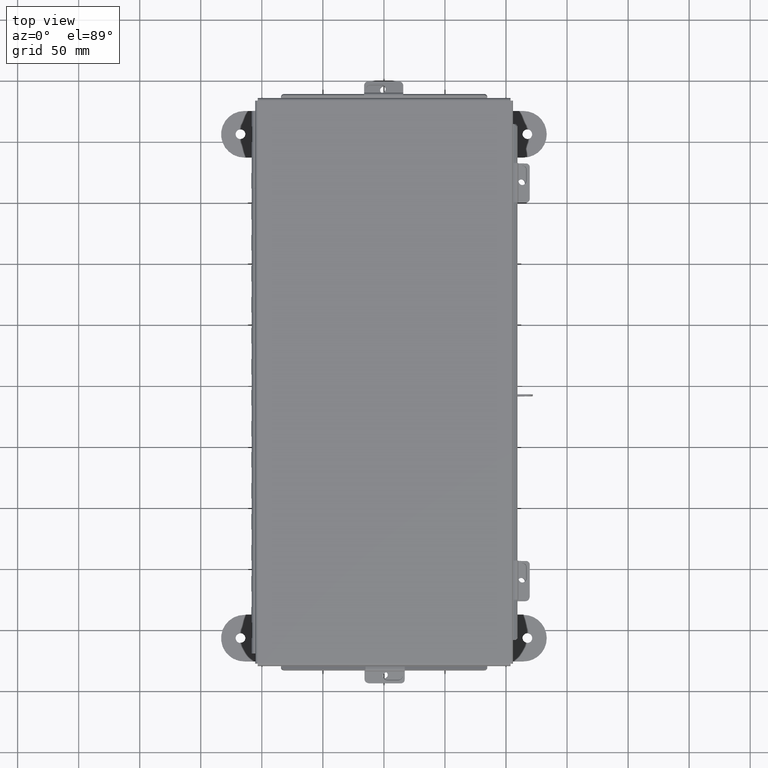
[diagram: clean part render]
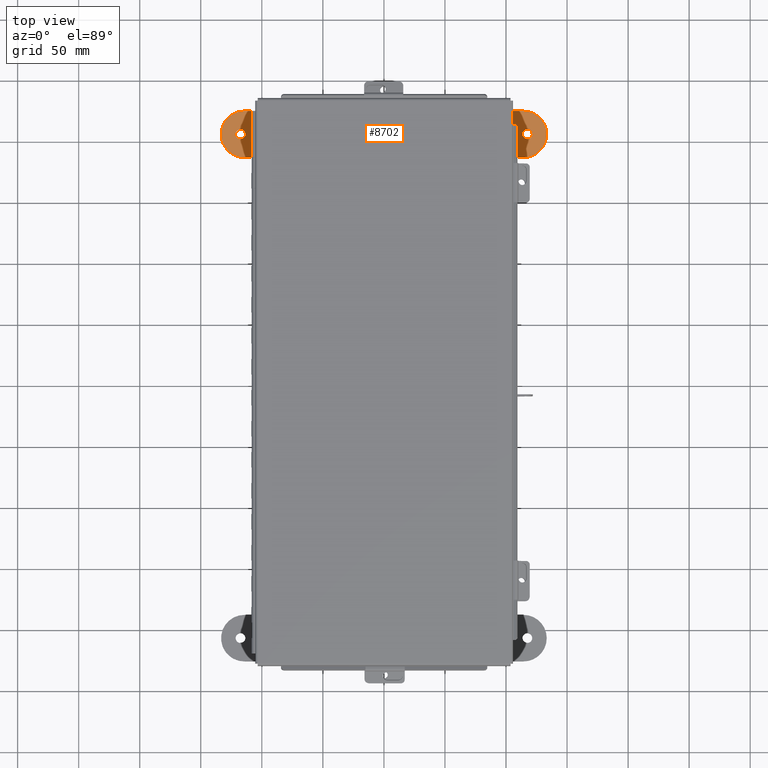
[diagram: same view with one face highlighted and labeled with its STEP entity id]
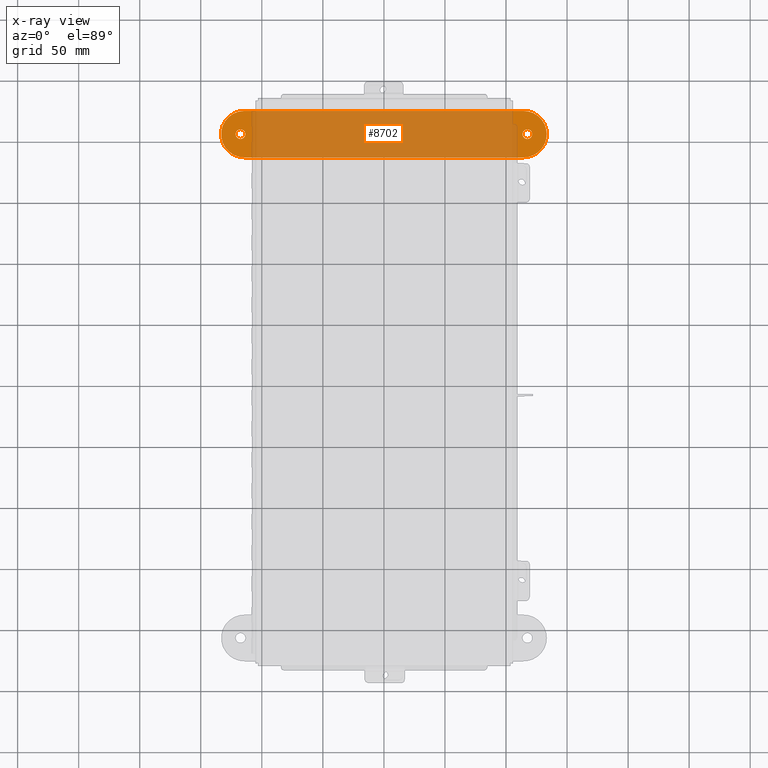
[diagram: x-ray of the same camera — body ghosted, the highlighted face saturated]
A machine part, top view. The second image highlights one B-rep face of the part: STEP entity #8702.
The next image is the same camera in x-ray: the body ghosted, the highlighted face saturated — about 85% of this face is hidden behind the body in this view.
In plain terms, the highlighted planar face has unit normal (0, -0, 1).
Its self-contained STEP definition (entity closure, byte-faithful):
#137 = DIRECTION ( 'NONE',  ( -1.000000000000000000, 0.0000000000000000000, 0.0000000000000000000 ) ) ;
#535 = VERTEX_POINT ( 'NONE', #2696 ) ;
#568 = CARTESIAN_POINT ( 'NONE',  ( -4.625000000000000000, 0.4120940649496085400, -0.1345000000000000100 ) ) ;
#644 = ORIENTED_EDGE ( 'NONE', *, *, #5334, .F. ) ;
#1074 = PLANE ( 'NONE',  #19142 ) ;
#1819 = AXIS2_PLACEMENT_3D ( 'NONE', #5045, #15456, #6575 ) ;
#2066 = DIRECTION ( 'NONE',  ( -1.000000000000000000, 0.0000000000000000000, 0.0000000000000000000 ) ) ;
#2376 = ORIENTED_EDGE ( 'NONE', *, *, #11008, .F. ) ;
#2592 = ORIENTED_EDGE ( 'NONE', *, *, #12017, .F. ) ;
#2618 = FACE_OUTER_BOUND ( 'NONE', #16530, .T. ) ;
#2620 = VERTEX_POINT ( 'NONE', #9155 ) ;
#2645 = CIRCLE ( 'NONE', #1819, 0.7500000000000010000 ) ;
#2696 = CARTESIAN_POINT ( 'NONE',  ( -4.781499999999999400, 0.4120940649496085400, -0.1345000000000000100 ) ) ;
#2798 = EDGE_CURVE ( 'NONE', #10501, #11703, #2645, .T. ) ;
#3819 = CARTESIAN_POINT ( 'NONE',  ( 4.625000000000000000, 0.4120940649496085400, -0.1345000000000000100 ) ) ;
#4061 = DIRECTION ( 'NONE',  ( -1.000000000000000000, 0.0000000000000000000, 0.0000000000000000000 ) ) ;
#4139 = CIRCLE ( 'NONE', #5331, 0.1564999999999992800 ) ;
#4216 = DIRECTION ( 'NONE',  ( 0.0000000000000000000, 0.0000000000000000000, 1.000000000000000000 ) ) ;
#4524 = DIRECTION ( 'NONE',  ( -1.000000000000000000, -1.214154663850783900E-016, -0.0000000000000000000 ) ) ;
#4638 = VERTEX_POINT ( 'NONE', #8315 ) ;
#4883 = CIRCLE ( 'NONE', #19163, 0.1564999999999992800 ) ;
#5045 = CARTESIAN_POINT ( 'NONE',  ( 4.499999999999999100, 0.4120940649496125900, -0.1345000000000000100 ) ) ;
#5319 = DIRECTION ( 'NONE',  ( -1.000000000000000000, 0.0000000000000000000, 0.0000000000000000000 ) ) ;
#5331 = AXIS2_PLACEMENT_3D ( 'NONE', #568, #11022, #2066 ) ;
#5334 = EDGE_CURVE ( 'NONE', #4638, #2620, #13510, .T. ) ;
#5578 = DIRECTION ( 'NONE',  ( 1.000000000000000000, -1.214154663850783900E-016, 0.0000000000000000000 ) ) ;
#6071 = CIRCLE ( 'NONE', #9231, 0.7500000000000010000 ) ;
#6575 = DIRECTION ( 'NONE',  ( -1.000000000000000000, 0.0000000000000000000, 0.0000000000000000000 ) ) ;
#6589 = FACE_BOUND ( 'NONE', #13857, .T. ) ;
#6890 = DIRECTION ( 'NONE',  ( 0.0000000000000000000, 0.0000000000000000000, 1.000000000000000000 ) ) ;
#7039 = CARTESIAN_POINT ( 'NONE',  ( -4.625000000000000000, 0.4120940649496085400, -0.1345000000000000100 ) ) ;
#7154 = VERTEX_POINT ( 'NONE', #10912 ) ;
#7166 = EDGE_LOOP ( 'NONE', ( #644, #2376 ) ) ;
#7347 = ORIENTED_EDGE ( 'NONE', *, *, #15056, .F. ) ;
#7545 = CIRCLE ( 'NONE', #13172, 0.1564999999999992800 ) ;
#7954 = VERTEX_POINT ( 'NONE', #9905 ) ;
#8315 = CARTESIAN_POINT ( 'NONE',  ( 4.781499999999999400, 0.4120940649496085400, -0.1345000000000000100 ) ) ;
#8537 = DIRECTION ( 'NONE',  ( -1.000000000000000000, 0.0000000000000000000, 0.0000000000000000000 ) ) ;
#8672 = EDGE_CURVE ( 'NONE', #15224, #535, #7545, .T. ) ;
#8702 = ADVANCED_FACE ( 'NONE', ( #2618, #6589, #10579 ), #1074, .T. ) ;
#9072 = DIRECTION ( 'NONE',  ( -0.0000000000000000000, -0.0000000000000000000, -1.000000000000000000 ) ) ;
#9155 = CARTESIAN_POINT ( 'NONE',  ( 4.468500000000000600, 0.4120940649496085400, -0.1345000000000000100 ) ) ;
#9231 = AXIS2_PLACEMENT_3D ( 'NONE', #13158, #4216, #14622 ) ;
#9420 = CARTESIAN_POINT ( 'NONE',  ( 4.499999999999999100, -0.3379059350503885700, -0.1345000000000000100 ) ) ;
#9659 = CIRCLE ( 'NONE', #11203, 0.7499999999999998900 ) ;
#9748 = AXIS2_PLACEMENT_3D ( 'NONE', #3819, #14251, #5319 ) ;
#9905 = CARTESIAN_POINT ( 'NONE',  ( -4.499999999999999100, 1.162094064949612300, -0.1345000000000000100 ) ) ;
#10501 = VERTEX_POINT ( 'NONE', #9420 ) ;
#10579 = FACE_BOUND ( 'NONE', #7166, .T. ) ;
#10783 = ORIENTED_EDGE ( 'NONE', *, *, #13758, .F. ) ;
#10816 = EDGE_CURVE ( 'NONE', #11703, #7154, #6071, .T. ) ;
#10912 = CARTESIAN_POINT ( 'NONE',  ( 4.499999999999999100, 1.162094064949613400, -0.1345000000000000100 ) ) ;
#11008 = EDGE_CURVE ( 'NONE', #2620, #4638, #4883, .T. ) ;
#11022 = DIRECTION ( 'NONE',  ( 0.0000000000000000000, 0.0000000000000000000, 1.000000000000000000 ) ) ;
#11203 = AXIS2_PLACEMENT_3D ( 'NONE', #15777, #6890, #17273 ) ;
#11242 = ORIENTED_EDGE ( 'NONE', *, *, #8672, .T. ) ;
#11283 = CARTESIAN_POINT ( 'NONE',  ( -4.499999999999999100, -0.3379059350503874600, -0.1345000000000000100 ) ) ;
#11406 = LINE ( 'NONE', #14942, #15315 ) ;
#11476 = DIRECTION ( 'NONE',  ( -0.0000000000000000000, 0.0000000000000000000, -1.000000000000000000 ) ) ;
#11703 = VERTEX_POINT ( 'NONE', #18538 ) ;
#12017 = EDGE_CURVE ( 'NONE', #7154, #7954, #11406, .T. ) ;
#12526 = ORIENTED_EDGE ( 'NONE', *, *, #10816, .F. ) ;
#13158 = CARTESIAN_POINT ( 'NONE',  ( 4.499999999999999100, 0.4120940649496125900, -0.1345000000000000100 ) ) ;
#13172 = AXIS2_PLACEMENT_3D ( 'NONE', #7039, #17413, #8537 ) ;
#13275 = CARTESIAN_POINT ( 'NONE',  ( -4.468500000000000600, 0.4120940649496085400, -0.1345000000000000100 ) ) ;
#13510 = CIRCLE ( 'NONE', #9748, 0.1564999999999992800 ) ;
#13631 = ORIENTED_EDGE ( 'NONE', *, *, #2798, .F. ) ;
#13758 = EDGE_CURVE ( 'NONE', #16915, #10501, #18984, .T. ) ;
#13857 = EDGE_LOOP ( 'NONE', ( #11242, #14699 ) ) ;
#14251 = DIRECTION ( 'NONE',  ( -0.0000000000000000000, -0.0000000000000000000, -1.000000000000000000 ) ) ;
#14622 = DIRECTION ( 'NONE',  ( -1.000000000000000000, 0.0000000000000000000, 0.0000000000000000000 ) ) ;
#14699 = ORIENTED_EDGE ( 'NONE', *, *, #18788, .T. ) ;
#14942 = CARTESIAN_POINT ( 'NONE',  ( -4.499999999999999100, 1.162094064949612300, -0.1345000000000000100 ) ) ;
#15022 = VECTOR ( 'NONE', #5578, 39.37007874015748100 ) ;
#15056 = EDGE_CURVE ( 'NONE', #7954, #16915, #9659, .T. ) ;
#15224 = VERTEX_POINT ( 'NONE', #13275 ) ;
#15315 = VECTOR ( 'NONE', #4524, 39.37007874015748100 ) ;
#15456 = DIRECTION ( 'NONE',  ( 0.0000000000000000000, 0.0000000000000000000, 1.000000000000000000 ) ) ;
#15777 = CARTESIAN_POINT ( 'NONE',  ( -4.499999999999999100, 0.4120940649496124300, -0.1345000000000000100 ) ) ;
#15901 = CARTESIAN_POINT ( 'NONE',  ( 4.499999999999999100, 0.4120940649496125900, -0.1345000000000000100 ) ) ;
#16001 = CARTESIAN_POINT ( 'NONE',  ( -4.499999999999999100, -0.3379059350503874600, -0.1345000000000000100 ) ) ;
#16530 = EDGE_LOOP ( 'NONE', ( #13631, #10783, #7347, #2592, #12526 ) ) ;
#16915 = VERTEX_POINT ( 'NONE', #16001 ) ;
#17273 = DIRECTION ( 'NONE',  ( 1.000000000000000000, 0.0000000000000000000, 0.0000000000000000000 ) ) ;
#17413 = DIRECTION ( 'NONE',  ( 0.0000000000000000000, 0.0000000000000000000, 1.000000000000000000 ) ) ;
#17960 = CARTESIAN_POINT ( 'NONE',  ( 4.625000000000000000, 0.4120940649496085400, -0.1345000000000000100 ) ) ;
#18538 = CARTESIAN_POINT ( 'NONE',  ( 5.250000000000000900, 0.4120940649496125900, -0.1345000000000000100 ) ) ;
#18788 = EDGE_CURVE ( 'NONE', #535, #15224, #4139, .T. ) ;
#18984 = LINE ( 'NONE', #11283, #15022 ) ;
#19142 = AXIS2_PLACEMENT_3D ( 'NONE', #15901, #11476, #4061 ) ;
#19163 = AXIS2_PLACEMENT_3D ( 'NONE', #17960, #9072, #137 ) ;